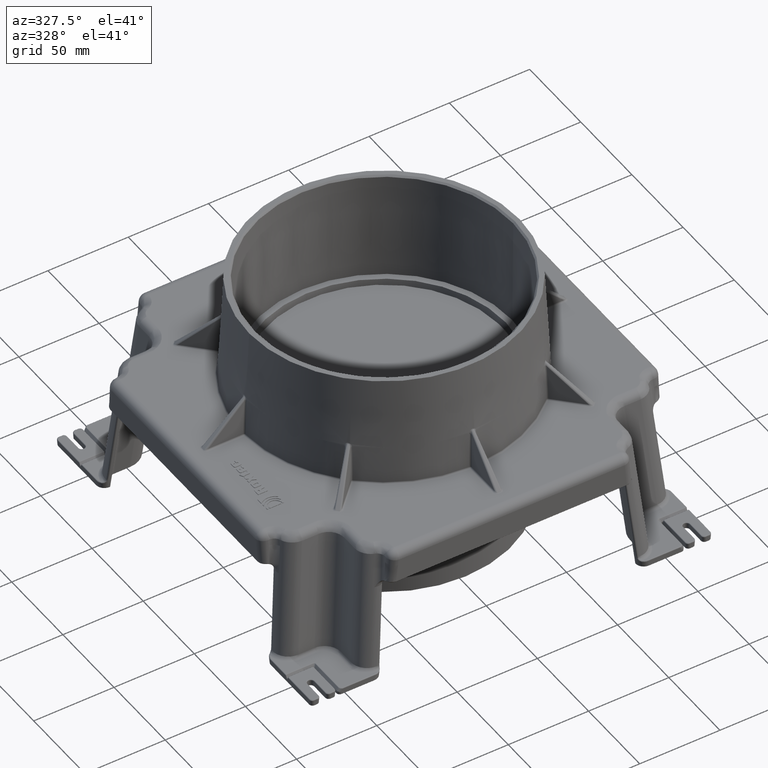
[diagram: clean part render]
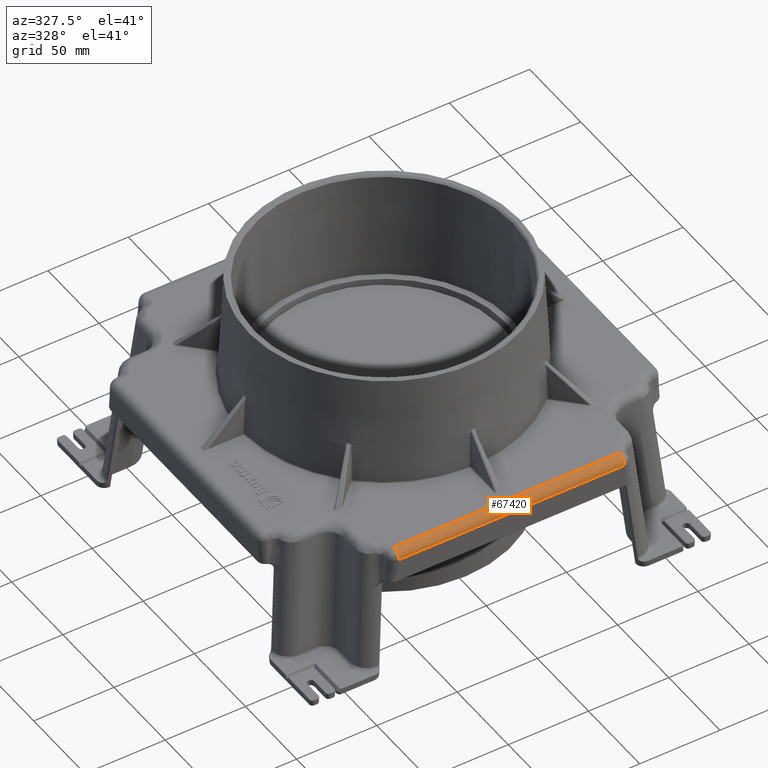
[diagram: same view with one face highlighted and labeled with its STEP entity id]
A machine part, auxiliary view. The second image highlights one B-rep face of the part: STEP entity #67420.
In plain terms, the highlighted cylindrical surface (edge-blend (fillet) strip) has radius 5 mm, axis along (-1, 0, 0).
Its self-contained STEP definition (entity closure, byte-faithful):
#32747=CARTESIAN_POINT('',(-70.418344129912896,-119.91196303513938,0.0));
#32748=VERTEX_POINT('',#32747);
#32755=CARTESIAN_POINT('',(70.418344129912882,-119.91196303513938,0.0));
#32756=VERTEX_POINT('',#32755);
#32757=CARTESIAN_POINT('',(70.418344129912896,-119.91196303513938,0.0));
#32758=DIRECTION('',(-1.0,0.0,0.0));
#32759=VECTOR('',#32758,140.83668825982579);
#32760=LINE('',#32757,#32759);
#32761=EDGE_CURVE('',#32756,#32748,#32760,.T.);
#64244=CARTESIAN_POINT('',(70.418344129912896,-124.91120151092133,-5.087262032186417));
#64245=VERTEX_POINT('',#64244);
#64252=CARTESIAN_POINT('',(-70.418344129912896,-124.91120151092133,-5.087262032186417));
#64253=VERTEX_POINT('',#64252);
#64254=CARTESIAN_POINT('',(-70.418344129912896,-124.91120151092133,-5.087262032186417));
#64255=DIRECTION('',(1.0,0.0,0.0));
#64256=VECTOR('',#64255,140.83668825982579);
#64257=LINE('',#64254,#64256);
#64258=EDGE_CURVE('',#64253,#64245,#64257,.T.);
#67397=CARTESIAN_POINT('',(-62.5,-119.91196303513938,-5.0));
#67398=DIRECTION('',(-1.0,0.0,0.0));
#67399=DIRECTION('',(0.0,-0.713250449154181,0.700909264299851));
#67400=AXIS2_PLACEMENT_3D('',#67397,#67398,#67399);
#67401=CYLINDRICAL_SURFACE('',#67400,5.0);
#67402=CARTESIAN_POINT('',(70.418344129912896,-119.91196303513938,-5.0));
#67403=DIRECTION('',(-1.0,0.0,0.0));
#67404=DIRECTION('',(0.0,-0.999847695156391,-0.017452406437283));
#67405=AXIS2_PLACEMENT_3D('',#67402,#67403,#67404);
#67406=CIRCLE('',#67405,4.999999999999995);
#67407=EDGE_CURVE('',#64245,#32756,#67406,.T.);
#67408=ORIENTED_EDGE('',*,*,#67407,.T.);
#67409=ORIENTED_EDGE('',*,*,#32761,.T.);
#67410=CARTESIAN_POINT('',(-70.418344129912896,-119.91196303513938,-5.0));
#67411=DIRECTION('',(1.0,0.0,0.0));
#67412=DIRECTION('',(0.0,0.0,1.0));
#67413=AXIS2_PLACEMENT_3D('',#67410,#67411,#67412);
#67414=CIRCLE('',#67413,5.0);
#67415=EDGE_CURVE('',#32748,#64253,#67414,.T.);
#67416=ORIENTED_EDGE('',*,*,#67415,.T.);
#67417=ORIENTED_EDGE('',*,*,#64258,.T.);
#67418=EDGE_LOOP('',(#67408,#67409,#67416,#67417));
#67419=FACE_OUTER_BOUND('',#67418,.T.);
#67420=ADVANCED_FACE('',(#67419),#67401,.T.);